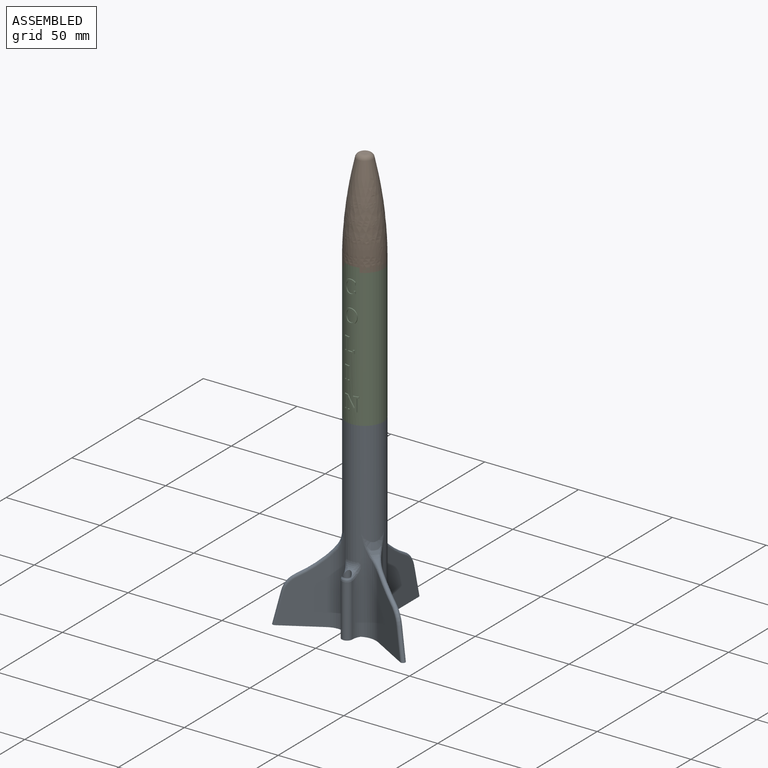
[diagram: assembled view]
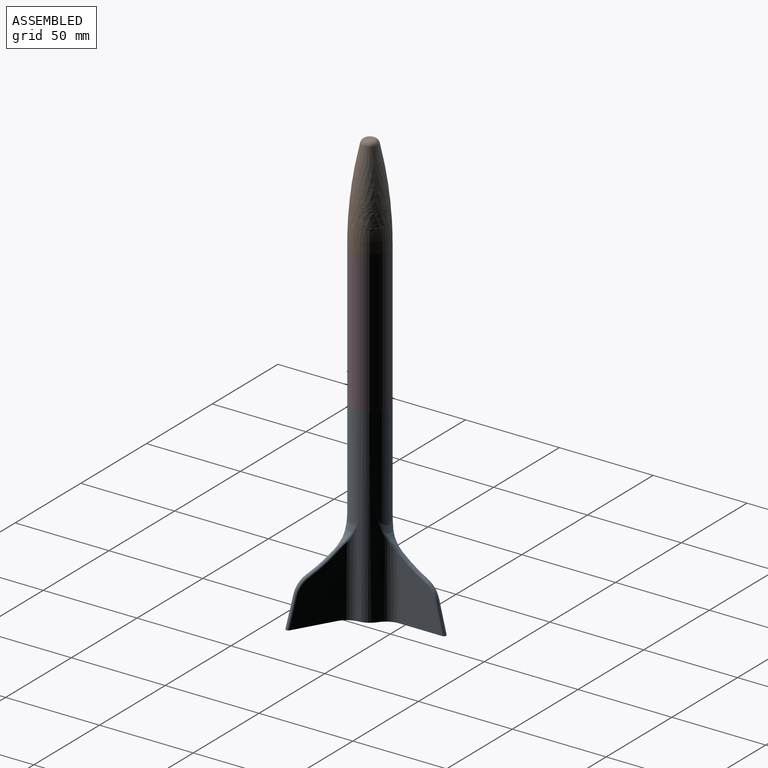
[diagram: assembled view, second angle]
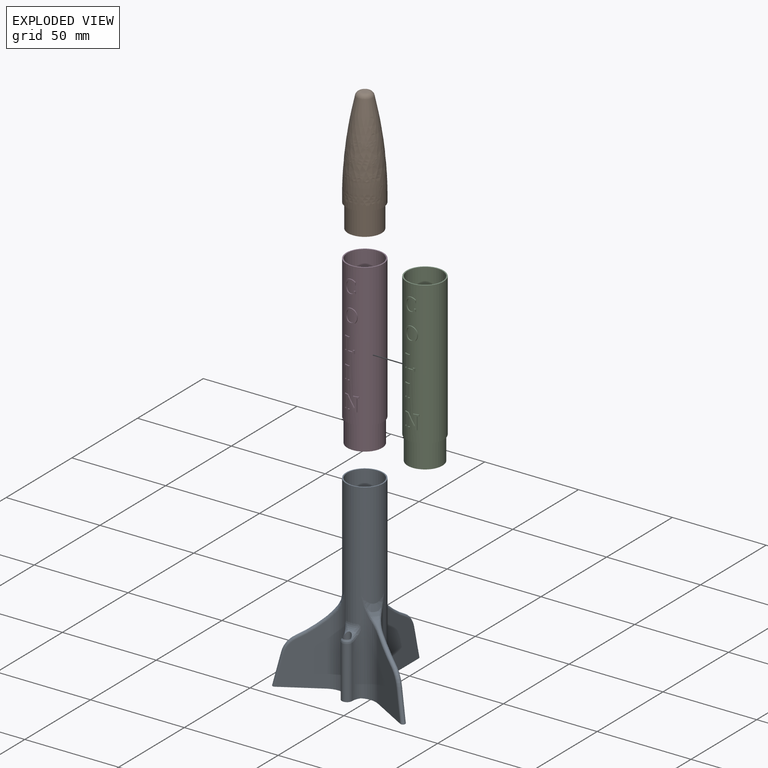
[diagram: exploded view]
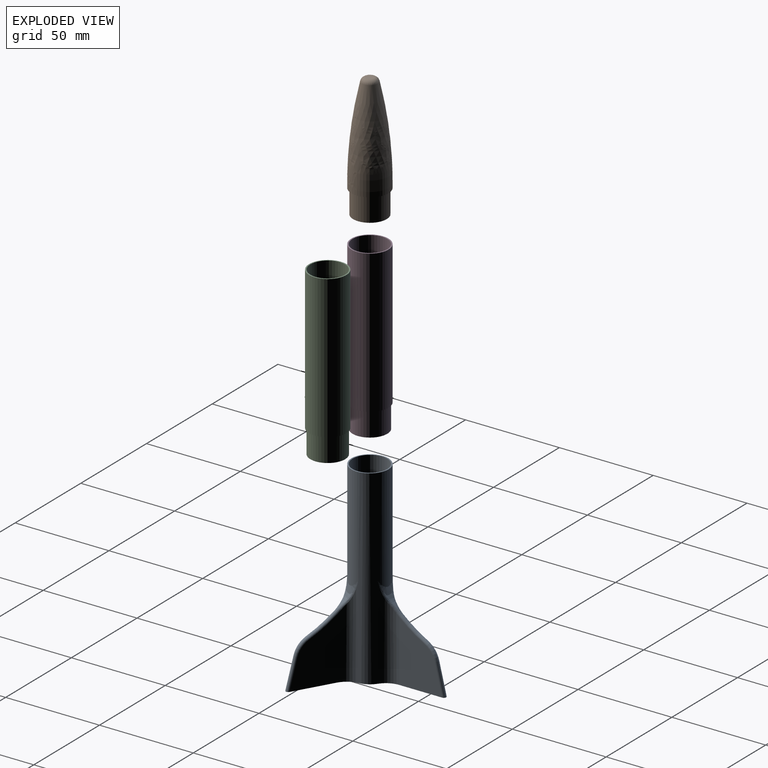
[diagram: exploded view, second angle]
ASSEMBLY  parts=4 mates=2
PART A: 156 faces, bbox 71.3x62.2x102.2 mm
  f0: plane 32.77x19.77mm, normal (-0.5,0.87,0), area 477.9mm2, adj f5,f26,f37,f39,f41,f55,f56,f57
  f1: cylinder r=9.28mm len=27.94mm, axis (0,0,-1), area 1629.8mm2, adj f4,f54
  f2: cylinder r=9.28mm len=60.96mm, axis (0,0,-1), area 3555.9mm2, adj f5,f53
  f3: cylinder r=9.92mm len=101.6mm, axis (0,0,-1), area 4341.8mm2, adj f4,f5,f9,f10,f11,f24,f25,f26
  f4: plane 19.84x19.84mm, normal (0,0,1), area 38.3mm2, adj f1,f3
  f5: plane 71.34x62.21mm, normal (0,0,-1), area 330.5mm2, adj f0,f2,f3,f6,f7,f9,f10,f12
  f6: plane 32.77x22.83mm, normal (-1,0,0), area 517mm2, adj f5,f10,f12,f14,f16
  f7: plane 32.77x22.83mm, normal (1,0,0), area 517mm2, adj f5,f9,f12,f14,f16
  f8: cylinder r=69.11mm len=4.75mm, axis (-1,0,0), area 7.2mm2, adj f11,f15,f17
  f9: cylinder r=10.16mm len=49.48mm, axis (0,0,-1), area 389.4mm2, adj f3,f5,f7,f13,f15
  f10: cylinder r=10.16mm len=49.48mm, axis (0,0,-1), area 389.4mm2, adj f3,f5,f6,f17,f18
  f11: bspline ~24.58x12.03mm, area 50.3mm2, adj f3,f8,f13,f18
  f12: cylinder r=1.27mm len=16.45mm, axis (0,0.24,-0.97), area 66.3mm2, adj f5,f6,f7,f14
  f13: bspline ~11.97x4.57mm, area 7mm2, adj f9,f11,f15
  f14: torus R=11.43mm, axis (1,0,0), area 40.7mm2, adj f6,f7,f12,f16
  f15: bspline ~8.2x7.67mm, area 11.8mm2, adj f8,f9,f13,f16
  f16: torus R=70.38mm, axis (1,0,0), area 63.9mm2, adj f6,f7,f14,f15,f17
  f17: bspline ~8.2x7.67mm, area 11.8mm2, adj f8,f10,f16,f18
  f18: bspline ~12.92x5.53mm, area 7mm2, adj f10,f11,f17
  f19: plane 32.77x19.77mm, normal (-0.5,-0.87,0), area 517mm2, adj f5,f29,f30,f32,f34
  f20: cylinder r=69.11mm len=5.19mm, axis (0.5,0.87,0), area 7.2mm2, adj f28,f33,f35
  f21: plane 32.77x19.77mm, normal (0.5,0.87,0), area 517mm2, adj f5,f27,f30,f32,f34
  f22: cylinder r=69.11mm len=5.19mm, axis (0.5,-0.87,0), area 7.2mm2, adj f25,f40,f42
  f23: plane 32.77x19.77mm, normal (0.5,-0.87,0), area 517mm2, adj f5,f24,f37,f39,f41
  f24: cylinder r=10.16mm len=49.48mm, axis (0,0,-1), area 389.4mm2, adj f3,f5,f23,f42,f43,f44
  f25: bspline ~21.37x12.62mm, area 50.3mm2, adj f3,f22,f38,f43
  f26: cylinder r=10.16mm len=49.48mm, axis (0,0,-1), area 389.4mm2, adj f0,f3,f5,f38,f40
  f27: cylinder r=10.16mm len=49.48mm, axis (0,0,-1), area 389.4mm2, adj f3,f5,f21,f35,f36
  f28: bspline ~21.2x12.85mm, area 50.3mm2, adj f3,f20,f31,f36
  f29: cylinder r=10.16mm len=49.48mm, axis (0,0,-1), area 389.4mm2, adj f3,f5,f19,f31,f33,f45
  f30: cylinder r=1.27mm len=16.45mm, axis (0.21,-0.12,-0.97), area 66.3mm2, adj f5,f19,f21,f32
  f31: bspline ~11.97x6.13mm, area 7mm2, adj f28,f29,f33
  f32: torus R=11.43mm, axis (-0.5,-0.87,0), area 40.7mm2, adj f19,f21,f30,f34
  f33: bspline ~8.2x8mm, area 11.8mm2, adj f20,f29,f31,f34
  f34: torus R=70.38mm, axis (-0.5,-0.87,0), area 63.9mm2, adj f19,f21,f32,f33,f35
  f35: bspline ~8.2x6.19mm, area 11.8mm2, adj f20,f27,f34,f36
  f36: bspline ~12.92x6.98mm, area 7mm2, adj f27,f28,f35
  f37: cylinder r=1.27mm len=16.45mm, axis (-0.21,-0.12,-0.97), area 66.3mm2, adj f0,f5,f23,f39
  f38: bspline ~11.97x6.18mm, area 7mm2, adj f25,f26,f40
  f39: torus R=11.43mm, axis (-0.5,0.87,0), area 40.7mm2, adj f0,f23,f37,f41
  f40: bspline ~8.2x6.19mm, area 11.8mm2, adj f22,f26,f38,f41
  f41: torus R=70.38mm, axis (-0.5,0.87,0), area 63.9mm2, adj f0,f23,f39,f40,f42
  f42: bspline ~8.2x8mm, area 11.8mm2, adj f22,f24,f41,f43
  f43: bspline ~12.92x7.1mm, area 7mm2, adj f24,f25,f42
  f44: cylinder r=7.73mm len=33.12mm, axis (0,0,-1), area 149.7mm2, adj f5,f24,f46,f51
  f45: cylinder r=7.73mm len=33.12mm, axis (0,0,-1), area 149.7mm2, adj f5,f29,f46,f49
  f46: cylinder r=2.74mm len=28.08mm, axis (0,0,-1), area 242mm2, adj f5,f44,f45,f50
  f47: cylinder r=2.1mm len=31.93mm, axis (0,0,-1), area 400.6mm2, adj f5,f48,f49,f50,f51
  f48: torus R=15mm, axis (0,0,-1), area 20mm2, adj f3,f47,f49,f51
  f49: bspline ~8x6.43mm, area 18.5mm2, adj f3,f45,f47,f48,f50
  f50: bspline ~5.49x2.74mm, area 13.4mm2, adj f46,f47,f49,f51
  f51: bspline ~7.92x5.73mm, area 17.4mm2, adj f3,f44,f47,f48,f50
  f52: cylinder r=7.62mm len=15.24mm, axis (0,0,1), area 608mm2, adj f53,f54
  f53: plane 18.57x18.57mm, normal (0,0,-1), area 88.4mm2, adj f2,f52
  f54: plane 18.57x18.57mm, normal (0,0,1), area 88.4mm2, adj f1,f52
  f55: plane 0.71x0.7mm, normal (0,0,-1), area 0.3mm2, adj f0,f56,f78,f79
  f56: plane 0.98x0.44mm, normal (-0.87,-0.5,0), area 0.5mm2, adj f0,f55,f57,f79
  f57: extruded ~0.87x0.8mm, area 0.5mm2, adj f0,f56,f58,f79
  f58: extruded ~1.21x0.99mm, area 0.6mm2, adj f0,f57,f59,f79
  f59: extruded ~1.79x1.33mm, area 1mm2, adj f0,f58,f60,f79
  f60: extruded ~2x0.84mm, area 1.1mm2, adj f0,f59,f61,f79
  f61: plane 0.44x0.25mm, normal (0.87,0.5,0), area 0mm2, adj f0,f60,f62,f79
  f62: extruded ~2x0.85mm, area 1.1mm2, adj f0,f61,f63,f79
  f63: extruded ~1.78x1.32mm, area 1mm2, adj f0,f62,f64,f79
  f64: extruded ~1.21x0.99mm, area 0.6mm2, adj f0,f63,f65,f79
  f65: extruded ~0.87x0.8mm, area 0.5mm2, adj f0,f64,f66,f79
  f66: plane 0.98x0.44mm, normal (-0.87,-0.5,0), area 0.5mm2, adj f0,f65,f67,f79
  f67: plane 0.71x0.7mm, normal (0,0,1), area 0.3mm2, adj f0,f66,f68,f79
  f68: plane 0.78x0.51mm, normal (0.85,0.49,0.18), area 0.4mm2, adj f0,f67,f69,f79
  f69: extruded ~0.68x0.66mm, area 0.3mm2, adj f0,f68,f70,f79
  f70: extruded ~0.84x0.78mm, area 0.4mm2, adj f0,f69,f71,f79
  f71: extruded ~1.34x1.07mm, area 0.7mm2, adj f0,f70,f72,f79
  f72: extruded ~1.58x0.67mm, area 0.8mm2, adj f0,f71,f73,f79
  f73: plane 0.44x0.25mm, normal (-0.87,-0.5,0), area 0mm2, adj f0,f72,f74,f79
  f74: extruded ~1.58x0.67mm, area 0.8mm2, adj f0,f73,f75,f79
  f75: extruded ~1.4x1.1mm, area 0.8mm2, adj f0,f74,f76,f79
  f76: extruded ~0.8x0.76mm, area 0.3mm2, adj f0,f75,f77,f79
  f77: extruded ~0.66x0.64mm, area 0.3mm2, adj f0,f76,f78,f79
  f78: plane 0.78x0.51mm, normal (0.85,0.49,-0.18), area 0.4mm2, adj f0,f55,f77,f79
  f79: plane 5.66x3.7mm, normal (-0.5,0.87,0), area 8mm2, adj f55,f56,f57,f58,f59,f60,f61,f62
  f80: extruded ~1.07x0.58mm, area 0.6mm2, adj f81,f99,f100,f101
  f81: plane 0.44x0.25mm, normal (-0.87,-0.5,0), area 0mm2, adj f80,f82,f100,f101
  f82: extruded ~1.07x0.58mm, area 0.6mm2, adj f81,f83,f100,f101
  f83: extruded ~0.96x0.84mm, area 0.5mm2, adj f82,f84,f100,f101
  f84: extruded ~0.96x0.85mm, area 0.5mm2, adj f83,f85,f100,f101
  f85: extruded ~1.07x0.58mm, area 0.6mm2, adj f84,f86,f100,f101
  f86: plane 0.44x0.25mm, normal (0.87,0.5,0), area 0mm2, adj f85,f87,f100,f101
  f87: extruded ~1.07x0.58mm, area 0.6mm2, adj f86,f88,f100,f101
  f88: extruded ~0.95x0.84mm, area 0.5mm2, adj f87,f99,f100,f101
  f89: extruded ~1.5x0.69mm, area 0.8mm2, adj f0,f90,f98,f100
  f90: plane 0.44x0.25mm, normal (0.87,0.5,0), area 0mm2, adj f0,f89,f91,f100
  f91: extruded ~1.5x0.69mm, area 0.8mm2, adj f0,f90,f92,f100
  f92: extruded ~1.42x1.11mm, area 0.8mm2, adj f0,f91,f93,f100
  f93: extruded ~1.41x1.11mm, area 0.8mm2, adj f0,f92,f94,f100
  f94: extruded ~1.5x0.69mm, area 0.8mm2, adj f0,f93,f95,f100
  f95: plane 0.44x0.25mm, normal (-0.87,-0.5,0), area 0mm2, adj f0,f94,f96,f100
  f96: extruded ~1.5x0.69mm, area 0.8mm2, adj f0,f95,f97,f100
  f97: extruded ~1.41x1.11mm, area 0.8mm2, adj f0,f96,f98,f100
  f98: extruded ~1.41x1.11mm, area 0.8mm2, adj f0,f89,f97,f100
  f99: extruded ~0.96x0.85mm, area 0.5mm2, adj f80,f88,f100,f101
  f100: plane 4.25x3.17mm, normal (-0.5,0.87,0), area 7.1mm2, adj f80,f81,f82,f83,f84,f85,f86,f87
  f101: plane 3.08x1.88mm, normal (-0.5,0.87,0), area 5.5mm2, adj f80,f81,f82,f83,f84,f85,f86,f87
  f102: plane 0.48x0.44mm, normal (0.87,0.5,0), area 0.2mm2, adj f0,f103,f111,f112
  f103: plane 0.79x0.75mm, normal (0.15,0.08,-0.99), area 0.3mm2, adj f0,f102,f104,f112
  f104: plane 4.73x0.44mm, normal (0.87,0.5,0), area 2.4mm2, adj f0,f103,f105,f112
  f105: plane 0.79x0.75mm, normal (0.15,0.08,0.99), area 0.3mm2, adj f0,f104,f106,f112
  f106: plane 0.48x0.44mm, normal (0.87,0.5,0), area 0.2mm2, adj f0,f105,f107,f112
  f107: plane 1.97x1.43mm, normal (0,0,-1), area 1mm2, adj f0,f106,f108,f112
  f108: plane 0.48x0.44mm, normal (-0.87,-0.5,0), area 0.2mm2, adj f0,f107,f109,f112
  f109: plane 0.79x0.75mm, normal (-0.15,-0.08,0.99), area 0.3mm2, adj f0,f108,f110,f112
  f110: plane 5.32x0.44mm, normal (-0.87,-0.5,0), area 2.7mm2, adj f0,f109,f111,f112
  f111: plane 1.43x1.12mm, normal (0,0,1), area 0.7mm2, adj f0,f102,f110,f112
  f112: plane 5.9x1.71mm, normal (-0.5,0.87,0), area 5.4mm2, adj f102,f103,f104,f105,f106,f107,f108,f109
  f113: plane 0.79x0.75mm, normal (0.15,0.08,0.99), area 0.3mm2, adj f0,f114,f122,f123
  f114: plane 0.48x0.44mm, normal (0.87,0.5,0), area 0.2mm2, adj f0,f113,f115,f123
  f115: plane 1.97x1.43mm, normal (0,0,-1), area 1mm2, adj f0,f114,f116,f123
  f116: plane 0.48x0.44mm, normal (-0.87,-0.5,0), area 0.2mm2, adj f0,f115,f117,f123
  f117: plane 0.79x0.75mm, normal (-0.15,-0.08,0.99), area 0.3mm2, adj f0,f116,f118,f123
  f118: plane 3.51x0.44mm, normal (-0.87,-0.5,0), area 1.8mm2, adj f0,f117,f119,f123
  f119: plane 1.43x1.12mm, normal (0,0,1), area 0.7mm2, adj f0,f118,f120,f123
  f120: plane 0.48x0.44mm, normal (0.87,0.5,0), area 0.2mm2, adj f0,f119,f121,f123
  f121: plane 0.79x0.75mm, normal (0.15,0.08,-0.99), area 0.3mm2, adj f0,f120,f122,f123
  f122: plane 2.92x0.44mm, normal (0.87,0.5,0), area 1.5mm2, adj f0,f113,f121,f123
  f123: plane 4.09x1.71mm, normal (-0.5,0.87,0), area 4mm2, adj f113,f114,f115,f116,f117,f118,f119,f120
  f124: plane 0.9x0.81mm, normal (0,0,-1), area 0.4mm2, adj f0,f125,f127,f128
  f125: plane 0.76x0.44mm, normal (-0.87,-0.5,0), area 0.4mm2, adj f0,f124,f126,f128
  f126: plane 0.9x0.81mm, normal (0,0,1), area 0.4mm2, adj f0,f125,f127,f128
  f127: plane 0.76x0.44mm, normal (0.87,0.5,0), area 0.4mm2, adj f0,f124,f126,f128
  f128: plane 0.76x0.64mm, normal (-0.5,0.87,0), area 0.6mm2, adj f124,f125,f126,f127
  f129: plane 0.79x0.75mm, normal (0.15,0.08,0.99), area 0.3mm2, adj f0,f130,f154,f155
  f130: plane 0.48x0.44mm, normal (0.87,0.5,0), area 0.2mm2, adj f0,f129,f131,f155
  f131: plane 1.97x1.43mm, normal (0,0,-1), area 1mm2, adj f0,f130,f132,f155
  f132: plane 0.48x0.44mm, normal (-0.87,-0.5,0), area 0.2mm2, adj f0,f131,f133,f155
  f133: plane 0.79x0.75mm, normal (-0.15,-0.08,0.99), area 0.3mm2, adj f0,f132,f134,f155
  f134: plane 2.4x0.44mm, normal (-0.87,-0.5,0), area 1.2mm2, adj f0,f133,f135,f155
  f135: extruded ~0.64x0.6mm, area 0.3mm2, adj f0,f134,f136,f155
  f136: extruded ~0.75x0.72mm, area 0.3mm2, adj f0,f135,f137,f155
  f137: extruded ~0.82x0.77mm, area 0.4mm2, adj f0,f136,f138,f155
  f138: extruded ~0.77x0.55mm, area 0.4mm2, adj f0,f137,f139,f155
  f139: plane 1.99x0.44mm, normal (0.87,0.5,0), area 1mm2, adj f0,f138,f140,f155
  f140: plane 0.79x0.75mm, normal (0.15,0.08,0.99), area 0.3mm2, adj f0,f139,f141,f155
  f141: plane 0.48x0.44mm, normal (0.87,0.5,0), area 0.2mm2, adj f0,f140,f142,f155
  f142: plane 1.97x1.43mm, normal (0,0,-1), area 1mm2, adj f0,f141,f143,f155
  f143: plane 0.48x0.44mm, normal (-0.87,-0.5,0), area 0.2mm2, adj f0,f142,f144,f155
  f144: plane 0.79x0.75mm, normal (-0.15,-0.08,0.99), area 0.3mm2, adj f0,f143,f145,f155
  f145: plane 2x0.44mm, normal (-0.87,-0.5,0), area 1mm2, adj f0,f144,f146,f155
  f146: extruded ~1.2x0.62mm, area 0.7mm2, adj f0,f145,f147,f155
  f147: extruded ~1.14x0.95mm, area 0.6mm2, adj f0,f146,f148,f155
  f148: extruded ~0.86x0.79mm, area 0.4mm2, adj f0,f147,f149,f155
  f149: extruded ~0.7x0.7mm, area 0.4mm2, adj f0,f148,f150,f155
  f150: plane 0.61x0.47mm, normal (-0.86,-0.5,0.09), area 0.3mm2, adj f0,f149,f151,f155
  f151: plane 1.36x1.08mm, normal (0,0,1), area 0.7mm2, adj f0,f150,f152,f155
  f152: plane 0.48x0.44mm, normal (0.87,0.5,0), area 0.2mm2, adj f0,f151,f153,f155
  f153: plane 0.79x0.75mm, normal (0.15,0.08,-0.99), area 0.3mm2, adj f0,f152,f154,f155
  f154: plane 2.92x0.44mm, normal (0.87,0.5,0), area 1.5mm2, adj f0,f129,f153,f155
  f155: plane 4.17x3.94mm, normal (-0.5,0.87,0), area 8.6mm2, adj f129,f130,f131,f132,f133,f134,f135,f136
PART B: 20 faces, bbox 19.8x19.8x66 mm
  f0: plane 17.3x17.3mm, normal (0,0,1), area 27.7mm2, adj f14,f16
  f1: cylinder r=8.34mm len=16.69mm, axis (0,0,-1), area 588mm2, adj f3,f6,f7,f8,f9,f10,f13
  f2: cylinder r=8.98mm len=17.96mm, axis (0,0,-1), area 716.5mm2, adj f3,f11
  f3: plane 17.96x17.96mm, normal (0,0,-1), area 79.4mm2, adj f1,f2,f4,f5,f7,f8,f9,f10
  f4: plane 13.2x6.35mm, normal (0,-1,0), area 83.8mm2, adj f3,f6,f7,f10
  f5: plane 13.2x6.35mm, normal (0,1,0), area 83.8mm2, adj f3,f6,f8,f9
  f6: plane 16.69x5.99mm, normal (0,0,1), area 44.9mm2, adj f1,f4,f5,f7,f8,f9,f10
  f7: cylinder r=1.27mm len=6.35mm, axis (0,0,-1), area 15.6mm2, adj f1,f3,f4,f6
  f8: cylinder r=1.27mm len=6.35mm, axis (0,0,-1), area 15.6mm2, adj f1,f3,f5,f6
  f9: cylinder r=1.27mm len=6.35mm, axis (0,0,-1), area 15.6mm2, adj f1,f3,f5,f6
  f10: cylinder r=1.27mm len=6.35mm, axis (0,0,-1), area 15.6mm2, adj f1,f3,f4,f6
  f11: plane 19.84x19.84mm, normal (0,0,-1), area 55.8mm2, adj f2,f12
  f12: cylinder r=9.92mm len=19.84mm, axis (0,0,1), area 158.3mm2, adj f11,f17
  f13: plane 16.69x16.69mm, normal (0,0,-1), area 11.4mm2, adj f1,f14
  f14: cylinder r=8.12mm len=16.25mm, axis (0,0,1), area 129.7mm2, adj f0,f13
  f15: plane 5.62x5.62mm, normal (0,0,-1), area 24.8mm2, adj f16
  f16: revolved ~49.53x17.3mm, area 2104mm2, adj f0,f15
  f17: revolved ~48.84x19.84mm, area 2487.6mm2, adj f12,f19
  f18: plane 3.61x3.61mm, normal (0,0,1), area 10.2mm2, adj f19
  f19: torus R=1.81mm, axis (0,0,-1), area 69.9mm2, adj f17,f18
PART C: 127 faces, bbox 20x20.4x89 mm
  f0: torus R=4.2mm, axis (0,0,-1), area 7.6mm2, adj f6,f113,f114,f115,f120,f126
  f1: torus R=4.2mm, axis (0,0,-1), area 147.3mm2, adj f6,f116,f117,f118,f119,f126
  f2: cylinder r=9.92mm len=76.2mm, axis (0,0,-1), area 4642.5mm2, adj f3,f4,f16,f17,f18,f19,f20,f21
  f3: plane 19.84x19.84mm, normal (0,0,1), area 38.3mm2, adj f2,f126
  f4: plane 19.84x19.84mm, normal (0,0,-1), area 38.3mm2, adj f2,f5
  f5: cylinder r=9.28mm len=18.57mm, axis (0,0,1), area 740.8mm2, adj f4,f7
  f6: cylinder r=8.47mm len=19.05mm, axis (0,0,1), area 1013.9mm2, adj f0,f1,f7,f124,f125
  f7: plane 18.57x18.57mm, normal (0,0,-1), area 45.3mm2, adj f5,f6
  f8: torus R=4.2mm, axis (0,0,-1), area 0.4mm2, adj f121,f122,f123,f126
  f9: cylinder r=4.19mm len=26.67mm, axis (0,0,1), area 227.1mm2, adj f11,f12,f13,f14,f126
  f10: cylinder r=1.65mm len=23.94mm, axis (0,0,1), area 216.3mm2, adj f13,f14
  f11: plane 2.66x0.38mm, normal (0,0,-1), area 0.7mm2, adj f9,f14
  f12: plane 2.66x0.38mm, normal (0,0,1), area 0.7mm2, adj f9,f13
  f13: torus R=5.47mm, axis (0,0,1), area 31mm2, adj f9,f10,f12,f126
  f14: torus R=5.47mm, axis (0,0,1), area 31mm2, adj f9,f10,f11,f126
  f15: cylinder r=9.92mm len=7.74mm, axis (0,0,-1), area 15.3mm2, adj f16,f17,f18,f19,f20,f21,f22,f23
  f16: plane 1.34x0.51mm, normal (1,0,0), area 0.7mm2, adj f2,f15,f17,f38
  f17: extruded ~0.98x0.75mm, area 0.6mm2, adj f2,f15,f16,f18
  f18: extruded ~1.51x0.55mm, area 0.8mm2, adj f2,f15,f17,f19
  f19: extruded ~2.41x1.09mm, area 1.4mm2, adj f2,f15,f18,f20
  f20: extruded ~2.73x0.94mm, area 1.5mm2, adj f2,f15,f19,f21
  f21: plane 0.51x0.11mm, normal (-1,0,0), area 0.1mm2, adj f2,f15,f20,f22
  f22: extruded ~2.74x0.93mm, area 1.5mm2, adj f2,f15,f21,f23
  f23: extruded ~2.42x1.08mm, area 1.4mm2, adj f2,f15,f22,f24
  f24: extruded ~1.51x0.55mm, area 0.8mm2, adj f2,f15,f23,f25
  f25: extruded ~0.98x0.75mm, area 0.6mm2, adj f2,f15,f24,f26
  f26: plane 1.34x0.51mm, normal (1,0,0), area 0.7mm2, adj f2,f15,f25,f39
  f27: extruded ~0.61x0.56mm, area 0.4mm2, adj f2,f15,f28,f36
  f28: extruded ~0.86x0.51mm, area 0.4mm2, adj f2,f15,f27,f29
  f29: extruded ~1.8x0.85mm, area 1.1mm2, adj f2,f15,f28,f30
  f30: extruded ~2.16x0.67mm, area 1.2mm2, adj f2,f15,f29,f31
  f31: plane 0.51x0.12mm, normal (1,0,0), area 0.1mm2, adj f2,f15,f30,f32
  f32: extruded ~2.16x0.67mm, area 1.2mm2, adj f2,f15,f31,f33
  f33: extruded ~1.71x0.86mm, area 1mm2, adj f2,f15,f32,f34
  f34: extruded ~0.93x0.51mm, area 0.5mm2, adj f2,f15,f33,f35
  f35: extruded ~0.65x0.56mm, area 0.4mm2, adj f2,f15,f34,f37
  f36: plane 1.07x0.53mm, normal (-0.98,0,-0.18), area 0.5mm2, adj f2,f15,f27,f39
  f37: plane 1.07x0.53mm, normal (-0.98,0,0.18), area 0.5mm2, adj f2,f15,f35,f38
  f38: plane 0.72x0.63mm, normal (0,0,1), area 0.4mm2, adj f2,f15,f16,f37
  f39: plane 0.72x0.63mm, normal (0,0,-1), area 0.4mm2, adj f2,f15,f26,f36
  f40: extruded ~2.44x1.09mm, area 1.4mm2, adj f2,f41,f49,f50
  f41: extruded ~2.37x1.09mm, area 1.4mm2, adj f2,f40,f42,f50
  f42: extruded ~2.73x0.91mm, area 1.5mm2, adj f2,f41,f43,f50
  f43: plane 0.51x0.11mm, normal (-1,0,0), area 0.1mm2, adj f2,f42,f44,f50
  f44: extruded ~2.73x0.91mm, area 1.5mm2, adj f2,f43,f45,f50
  f45: extruded ~2.37x1.09mm, area 1.4mm2, adj f2,f44,f46,f50
  f46: extruded ~2.44x1.09mm, area 1.4mm2, adj f2,f45,f47,f50
  f47: extruded ~2.73x0.94mm, area 1.5mm2, adj f2,f46,f48,f50
  f48: plane 0.51x0.11mm, normal (1,0,0), area 0.1mm2, adj f2,f47,f49,f50
  f49: extruded ~2.73x0.94mm, area 1.5mm2, adj f2,f40,f48,f50
  f50: cylinder r=9.92mm len=7.74mm, axis (0,0,-1), area 19mm2, adj f40,f41,f42,f43,f44,f45,f46,f47
  f51: extruded ~1.74x0.83mm, area 1mm2, adj f50,f52,f60,f61
  f52: extruded ~1.66x0.83mm, area 1mm2, adj f50,f51,f53,f61
  f53: extruded ~2.14x0.66mm, area 1.1mm2, adj f50,f52,f54,f61
  f54: plane 0.51x0.12mm, normal (1,0,0), area 0.1mm2, adj f50,f53,f55,f61
  f55: extruded ~2.15x0.66mm, area 1.2mm2, adj f50,f54,f56,f61
  f56: extruded ~1.66x0.83mm, area 1mm2, adj f50,f55,f57,f61
  f57: extruded ~1.75x0.83mm, area 1mm2, adj f50,f56,f58,f61
  f58: extruded ~2.15x0.62mm, area 1.2mm2, adj f50,f57,f59,f61
  f59: plane 0.51x0.12mm, normal (-1,0,0), area 0.1mm2, adj f50,f58,f60,f61
  f60: extruded ~2.14x0.63mm, area 1.2mm2, adj f50,f51,f59,f61
  f61: cylinder r=9.92mm len=6.07mm, axis (0,0,-1), area 23.1mm2, adj f51,f52,f53,f54,f55,f56,f57,f58
  f62: cylinder r=9.92mm len=7.52mm, axis (0,0,-1), area 13.5mm2, adj f63,f64,f65,f66,f67,f68,f69,f70
  f63: plane 1.66x0.51mm, normal (1,0,0), area 0.8mm2, adj f2,f62,f75,f76
  f64: plane 5.93x0.51mm, normal (1,0,0), area 3mm2, adj f2,f62,f72,f73
  f65: plane 0.66x0.51mm, normal (1,0,0), area 0.3mm2, adj f2,f62,f71,f72
  f66: plane 0.66x0.51mm, normal (-1,0,0), area 0.3mm2, adj f2,f62,f70,f71
  f67: plane 5.93x0.51mm, normal (-1,0,0), area 3mm2, adj f2,f62,f69,f70
  f68: plane 0.65x0.51mm, normal (-1,0,0), area 0.3mm2, adj f2,f62,f69,f76
  f69: plane 0.84x0.82mm, normal (-0.17,0,0.99), area 0.4mm2, adj f2,f62,f67,f68
  f70: plane 0.84x0.82mm, normal (-0.17,0,-0.99), area 0.4mm2, adj f2,f62,f66,f67
  f71: plane 2.7x1.21mm, normal (0,0,1), area 1.4mm2, adj f2,f62,f65,f66
  f72: plane 0.84x0.64mm, normal (0.17,0,-0.99), area 0.4mm2, adj f2,f62,f64,f65
  f73: plane 2.61x0.71mm, normal (0,0,1), area 1.3mm2, adj f2,f62,f64,f74
  f74: plane 0.86x0.51mm, normal (-1,0,0.09), area 0.4mm2, adj f2,f62,f73,f75
  f75: plane 0.87x0.61mm, normal (0,0,1), area 0.4mm2, adj f2,f62,f63,f74
  f76: plane 5.42x1.28mm, normal (0,0,-1), area 2.8mm2, adj f2,f62,f63,f68
  f77: cylinder r=9.92mm len=7.52mm, axis (0,0,-1), area 10.5mm2, adj f78,f79,f80,f81,f82,f83,f84,f85
  f78: plane 5.93x0.51mm, normal (-1,0,0), area 3mm2, adj f2,f77,f88,f89
  f79: plane 0.65x0.51mm, normal (-1,0,0), area 0.3mm2, adj f2,f77,f87,f88
  f80: plane 0.65x0.51mm, normal (1,0,0), area 0.3mm2, adj f2,f77,f86,f87
  f81: plane 5.93x0.51mm, normal (1,0,0), area 3mm2, adj f2,f77,f85,f86
  f82: plane 0.66x0.51mm, normal (1,0,0), area 0.3mm2, adj f2,f77,f84,f85
  f83: plane 0.66x0.51mm, normal (-1,0,0), area 0.3mm2, adj f2,f77,f84,f89
  f84: plane 2.7x1.21mm, normal (0,0,1), area 1.4mm2, adj f2,f77,f82,f83
  f85: plane 0.84x0.64mm, normal (0.17,0,-0.99), area 0.4mm2, adj f2,f77,f81,f82
  f86: plane 0.84x0.64mm, normal (0.17,0,0.99), area 0.4mm2, adj f2,f77,f80,f81
  f87: plane 2.7x1.21mm, normal (0,0,-1), area 1.4mm2, adj f2,f77,f79,f80
  f88: plane 0.84x0.82mm, normal (-0.17,0,0.99), area 0.4mm2, adj f2,f77,f78,f79
  f89: plane 0.84x0.82mm, normal (-0.17,0,-0.99), area 0.4mm2, adj f2,f77,f78,f83
  f90: plane 0.66x0.51mm, normal (1,0,0), area 0.3mm2, adj f2,f106,f107,f112
  f91: plane 0.66x0.51mm, normal (-1,0,0), area 0.3mm2, adj f2,f106,f107,f108
  f92: plane 0.66x0.51mm, normal (-1,0,0), area 0.3mm2, adj f2,f106,f109,f110
  f93: plane 0.51x0.03mm, normal (-0.3,0,0.95), area 0mm2, adj f2,f94,f100,f106
  f94: plane 5.82x3.64mm, normal (0.85,0,0.53), area 3.5mm2, adj f2,f93,f106,f109
  f95: plane 0.84x0.82mm, normal (-0.17,0,0.99), area 0.4mm2, adj f2,f101,f102,f106
  f96: plane 2.7x1.21mm, normal (0,0,-1), area 1.4mm2, adj f2,f102,f103,f106
  f97: plane 0.84x0.64mm, normal (0.17,0,0.99), area 0.4mm2, adj f2,f103,f104,f106
  f98: plane 5.83x3.63mm, normal (-0.85,0,-0.53), area 3.5mm2, adj f2,f99,f106,f111
  f99: plane 1.02x0.74mm, normal (0,0,-1), area 0.5mm2, adj f2,f98,f105,f106
  f100: plane 4.99x0.51mm, normal (-1,0,0), area 2.5mm2, adj f2,f93,f106,f108
  f101: plane 5.93x0.51mm, normal (-1,0,0), area 3mm2, adj f2,f95,f106,f110
  f102: plane 0.65x0.51mm, normal (-1,0,0), area 0.3mm2, adj f2,f95,f96,f106
  f103: plane 0.65x0.51mm, normal (1,0,0), area 0.3mm2, adj f2,f96,f97,f106
  f104: plane 5x0.51mm, normal (1,0,0), area 2.5mm2, adj f2,f97,f106,f111
  f105: plane 6.72x0.51mm, normal (1,0,0), area 3.4mm2, adj f2,f99,f106,f112
  f106: cylinder r=9.92mm len=7.52mm, axis (0,0,-1), area 25.1mm2, adj f90,f91,f92,f93,f94,f95,f96,f97
  f107: plane 2.7x1.13mm, normal (0,0,1), area 1.4mm2, adj f2,f90,f91,f106
  f108: plane 0.84x0.62mm, normal (-0.17,0,-0.99), area 0.4mm2, adj f2,f91,f100,f106
  f109: plane 1.86x1.08mm, normal (0,0,1), area 0.9mm2, adj f2,f92,f94,f106
  f110: plane 0.84x0.82mm, normal (-0.17,0,-0.99), area 0.4mm2, adj f2,f92,f101,f106
  f111: plane 0.51x0.03mm, normal (0.35,0,-0.94), area 0mm2, adj f2,f98,f104,f106
  f112: plane 0.84x0.79mm, normal (0.17,0,-0.99), area 0.4mm2, adj f2,f90,f105,f106
  f113: plane 0.84x0.55mm, normal (-0.17,0,-0.99), area 0.4mm2, adj f0,f114,f115,f126
  f114: plane 0.82x0.66mm, normal (-1,0,0), area 0.4mm2, adj f0,f113,f124,f126
  f115: plane 2.01x0.45mm, normal (-1,0,0), area 0.3mm2, adj f0,f113,f126
  f116: plane 0.84x0.84mm, normal (0.17,0,-0.99), area 0.4mm2, adj f1,f117,f118,f126
  f117: plane 2.04x0.49mm, normal (1,0,0), area 0.3mm2, adj f1,f116,f126
  f118: plane 0.92x0.67mm, normal (1,0,0), area 0.4mm2, adj f1,f116,f124,f126
  f119: plane 2.76x0.86mm, normal (-1,0,0), area 0.8mm2, adj f1,f125,f126
  f120: plane 2.82x1.77mm, normal (0.85,0,0.53), area 0.9mm2, adj f0,f125,f126
  f121: plane 0.11x0.03mm, normal (0.3,0,-0.95), area 0mm2, adj f8,f122,f123,f126
  f122: plane 1.04x0.65mm, normal (-0.85,0,-0.53), area 0mm2, adj f8,f121,f126
  f123: plane 1.04x0.12mm, normal (1,0,0), area 0mm2, adj f8,f121,f126
  f124: plane 2.7x1.66mm, normal (0,0,1), area 2.3mm2, adj f6,f114,f118,f126
  f125: plane 1.1x1.02mm, normal (0,0,1), area 0.9mm2, adj f6,f119,f120,f126
  f126: cylinder r=9.28mm len=69.85mm, axis (0,0,-1), area 3697.2mm2, adj f0,f1,f3,f8,f9,f13,f14,f113
PART D: same geometry as C
PLACE A t=(-3.84,21.44,-98.25)mm
PLACE B t=(-3.84,21.44,64.31)mm
PLACE C t=(-3.84,21.44,3.35)mm
PLACE D t=(-3.84,21.44,3.35)mm
MATE fastened A.f3 <-> D.f2  axis (0,0,-1) through (-3.84,21.44,3.35)mm
MATE fastened B.f2 <-> D.f2  axis (0,0,1) through (-3.84,21.44,79.55)mm
